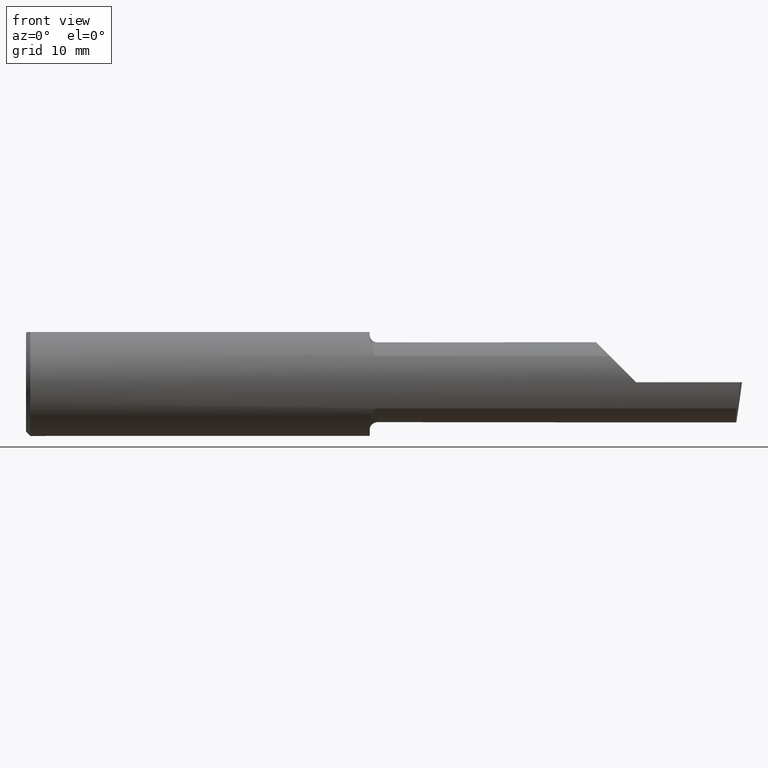
[diagram: clean part render]
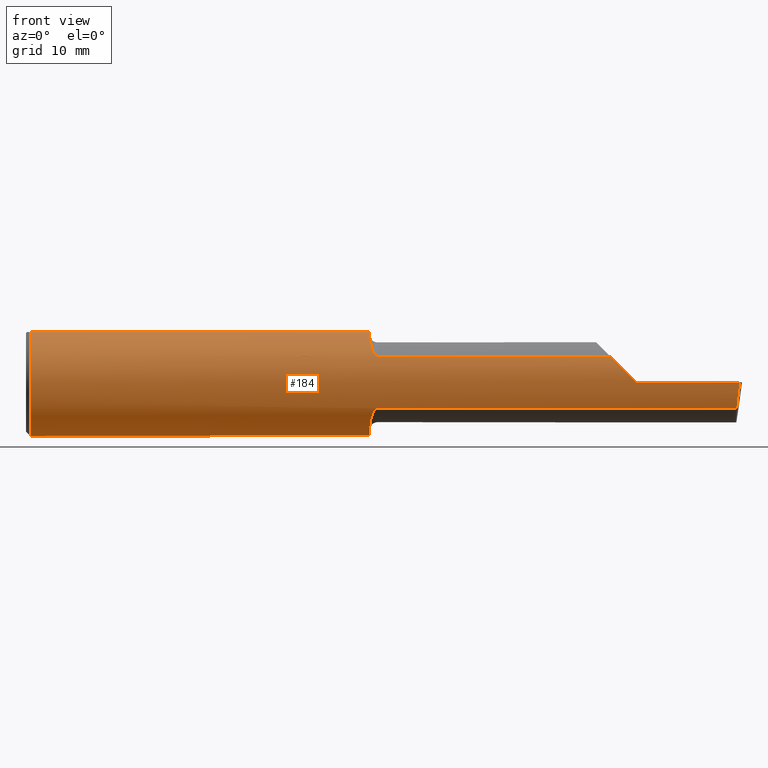
[diagram: same view with one face highlighted and labeled with its STEP entity id]
A machine part, front view. The second image highlights one B-rep face of the part: STEP entity #184.
In plain terms, the highlighted cylindrical surface (partial cylindrical patch) has radius 4.7587 mm, axis along (-1, -0, -0).
Its self-contained STEP definition (entity closure, byte-faithful):
#3 = B_SPLINE_CURVE_WITH_KNOTS ( 'NONE', 3,
 ( #595, #487, #276, #542, #645, #496, #432, #477, #648, #5, #58, #656, #168, #438 ),
 .UNSPECIFIED., .F., .F.,
 ( 4, 2, 2, 2, 2, 2, 4 ),
 ( 0.0002471551878304231319, 0.0008987327522055655899, 0.001550310316580708102, 0.002201887880955850831, 0.002527676663143422521, 0.002690571054237206414, 0.002853465445330989874 ),
 .UNSPECIFIED. ) ;
#5 = CARTESIAN_POINT ( 'NONE',  ( 1.216855994529494112, -0.1603175578889970976, 0.09696363432848424668 ) ) ;
#8 = ORIENTED_EDGE ( 'NONE', *, *, #452, .T. ) ;
#10 = ORIENTED_EDGE ( 'NONE', *, *, #290, .T. ) ;
#12 = LINE ( 'NONE', #109, #449 ) ;
#14 = ORIENTED_EDGE ( 'NONE', *, *, #399, .T. ) ;
#17 = EDGE_CURVE ( 'NONE', #471, #261, #286, .T. ) ;
#19 = VERTEX_POINT ( 'NONE', #445 ) ;
#23 = DIRECTION ( 'NONE',  ( 0.000000000000000000, 0.000000000000000000, 1.000000000000000000 ) ) ;
#24 = AXIS2_PLACEMENT_3D ( 'NONE', #617, #458, #179 ) ;
#27 = DIRECTION ( 'NONE',  ( -1.000000000000000000, -0.000000000000000000, -0.000000000000000000 ) ) ;
#33 = VECTOR ( 'NONE', #63, 39.37007874015748143 ) ;
#39 = LINE ( 'NONE', #264, #446 ) ;
#42 = CARTESIAN_POINT ( 'NONE',  ( 2.097861799102314961, -0.1873500000000000165, 0.03213820089768509858 ) ) ;
#45 = DIRECTION ( 'NONE',  ( 0.000000000000000000, 0.000000000000000000, 1.000000000000000000 ) ) ;
#53 = DIRECTION ( 'NONE',  ( 0.000000000000000000, 0.000000000000000000, 1.000000000000000000 ) ) ;
#56 = EDGE_CURVE ( 'NONE', #261, #339, #575, .T. ) ;
#58 = CARTESIAN_POINT ( 'NONE',  ( 1.218001859868117043, -0.1612625562479372554, 0.09537826053888157074 ) ) ;
#59 = CARTESIAN_POINT ( 'NONE',  ( 1.217975941902153636, -0.1612443294219082224, -0.09540922431498180534 ) ) ;
#61 =( BOUNDED_CURVE ( )  B_SPLINE_CURVE ( 3, ( #334, #163, #377, #604 ),
 .UNSPECIFIED., .F., .F. ) 
 B_SPLINE_CURVE_WITH_KNOTS ( ( 4, 4 ),
 ( 0.8516985021657648147, 1.360746882515198930 ),
 .UNSPECIFIED. ) 
 CURVE ( )  GEOMETRIC_REPRESENTATION_ITEM ( )  RATIONAL_B_SPLINE_CURVE ( ( 1.000000000000000000, 0.9785221379938656705, 0.9785221379938656705, 1.000000000000000000 ) ) 
 REPRESENTATION_ITEM ( '' )  );
#63 = DIRECTION ( 'NONE',  ( -1.000000000000000000, -6.829619984160658046E-18, -0.000000000000000000 ) ) ;
#69 = VECTOR ( 'NONE', #153, 39.37007874015748143 ) ;
#79 = FACE_OUTER_BOUND ( 'NONE', #102, .T. ) ;
#93 = CARTESIAN_POINT ( 'NONE',  ( 1.225000000000000089, -0.1635956445993032859, -0.09130436773856132060 ) ) ;
#102 = EDGE_LOOP ( 'NONE', ( #123, #14, #378, #10, #384, #212, #204, #8, #680, #367, #135, #546, #318 ) ) ;
#109 = CARTESIAN_POINT ( 'NONE',  ( 0.000000000000000000, -0.06597272163553657975, 0.1753499999999999781 ) ) ;
#110 = CARTESIAN_POINT ( 'NONE',  ( 1.220881499230870304, -0.1628722075910993550, -0.09260290410947824569 ) ) ;
#114 = CARTESIAN_POINT ( 'NONE',  ( 1.216814909379088760, -0.1602818635245160106, -0.09702252612905261364 ) ) ;
#116 = CARTESIAN_POINT ( 'NONE',  ( 0.01499999999999999424, 0.000000000000000000, 0.000000000000000000 ) ) ;
#117 = CARTESIAN_POINT ( 'NONE',  ( 1.203041727949557549, -0.1311116946065053745, -0.1340922927843368473 ) ) ;
#122 = CIRCLE ( 'NONE', #24, 0.1873499999999999888 ) ;
#123 = ORIENTED_EDGE ( 'NONE', *, *, #17, .F. ) ;
#127 = CARTESIAN_POINT ( 'NONE',  ( 0.01499999999999997863, -0.06597272163553657975, 0.1753499999999999781 ) ) ;
#132 = DIRECTION ( 'NONE',  ( 1.000000000000000000, 6.829619984160658046E-18, 0.000000000000000000 ) ) ;
#134 = AXIS2_PLACEMENT_3D ( 'NONE', #561, #132, #520 ) ;
#135 = ORIENTED_EDGE ( 'NONE', *, *, #362, .T. ) ;
#141 = CARTESIAN_POINT ( 'NONE',  ( 2.491672876940991710, -0.1873499999999999888, 6.915950918908297591E-17 ) ) ;
#147 = CARTESIAN_POINT ( 'NONE',  ( 1.199999999999999956, -0.09715400696864127938, -0.1601908905959923690 ) ) ;
#153 = DIRECTION ( 'NONE',  ( 1.000000000000000000, 0.000000000000000000, 0.000000000000000000 ) ) ;
#161 = EDGE_CURVE ( 'NONE', #357, #19, #495, .T. ) ;
#163 = CARTESIAN_POINT ( 'NONE',  ( 2.484117089522338340, -0.1792580844883771840, -0.06324101202936123489 ) ) ;
#168 = CARTESIAN_POINT ( 'NONE',  ( 1.222800914500664859, -0.1635956445997550635, 0.09130436773775207904 ) ) ;
#169 = CARTESIAN_POINT ( 'NONE',  ( 1.225000000000000089, -0.1635956445993032859, -0.09130436773856132060 ) ) ;
#179 = DIRECTION ( 'NONE',  ( 0.000000000000000000, 1.000000000000000000, 0.000000000000000000 ) ) ;
#182 = CIRCLE ( 'NONE', #305, 0.1873499999999999888 ) ;
#184 = ADVANCED_FACE ( 'NONE', ( #79 ), #513, .T. ) ;
#186 = CARTESIAN_POINT ( 'NONE',  ( 1.199999999999999956, -0.09715400696864127938, -0.1601908905959923690 ) ) ;
#198 = CARTESIAN_POINT ( 'NONE',  ( 1.199999999999999956, -0.1045082199249681987, -0.1557306416133593385 ) ) ;
#204 = ORIENTED_EDGE ( 'NONE', *, *, #161, .F. ) ;
#208 = CARTESIAN_POINT ( 'NONE',  ( 2.129999999999999893, -0.1873499999999999888, 1.065442715258197396E-16 ) ) ;
#212 = ORIENTED_EDGE ( 'NONE', *, *, #442, .F. ) ;
#223 = CARTESIAN_POINT ( 'NONE',  ( 1.199999999999999956, 0.06597272163553663527, 0.1753499999999999781 ) ) ;
#227 = VERTEX_POINT ( 'NONE', #464 ) ;
#241 = CARTESIAN_POINT ( 'NONE',  ( 1.200384441902395682, -0.1115101367984840525, -0.1507946173152222846 ) ) ;
#248 = CARTESIAN_POINT ( 'NONE',  ( 2.129999999999999893, -0.1873499999999999888, 1.065442715258197396E-16 ) ) ;
#251 = CIRCLE ( 'NONE', #393, 0.1873499999999999888 ) ;
#258 = DIRECTION ( 'NONE',  ( -1.000000000000000000, -0.000000000000000000, -0.000000000000000000 ) ) ;
#261 = VERTEX_POINT ( 'NONE', #93 ) ;
#264 = CARTESIAN_POINT ( 'NONE',  ( 3.377502344341257155E-32, -0.1873499999999999610, 3.267291166268304703E-16 ) ) ;
#271 = CARTESIAN_POINT ( 'NONE',  ( 0.01499999999999999424, 0.000000000000000000, -0.1873499999999999888 ) ) ;
#276 = CARTESIAN_POINT ( 'NONE',  ( 1.200383728133729955, -0.1114837668894152756, 0.1508119329971095712 ) ) ;
#286 = LINE ( 'NONE', #289, #33 ) ;
#289 = CARTESIAN_POINT ( 'NONE',  ( 1.692500000000000115, -0.1635956445993031472, -0.09130436773856158428 ) ) ;
#290 = EDGE_CURVE ( 'NONE', #511, #227, #356, .T. ) ;
#293 = EDGE_CURVE ( 'NONE', #651, #511, #39, .T. ) ;
#305 = AXIS2_PLACEMENT_3D ( 'NONE', #116, #441, #53 ) ;
#318 = ORIENTED_EDGE ( 'NONE', *, *, #56, .F. ) ;
#322 = EDGE_CURVE ( 'NONE', #609, #227, #632, .T. ) ;
#334 = CARTESIAN_POINT ( 'NONE',  ( 2.481080296960509024, -0.1635956445993031472, -0.09130436773856158428 ) ) ;
#335 = CARTESIAN_POINT ( 'NONE',  ( 1.212184598714912687, -0.1550322129197699017, -0.1052705638704079516 ) ) ;
#339 = VERTEX_POINT ( 'NONE', #147 ) ;
#348 = EDGE_CURVE ( 'NONE', #430, #479, #251, .T. ) ;
#350 = CARTESIAN_POINT ( 'NONE',  ( 1.225000000000000089, -0.1635956445993030917, 0.09130436773856158428 ) ) ;
#356 =( BOUNDED_CURVE ( )  B_SPLINE_CURVE ( 3, ( #208, #42, #589, #523 ),
 .UNSPECIFIED., .F., .F. ) 
 B_SPLINE_CURVE_WITH_KNOTS ( ( 4, 4 ),
 ( 4.712388980384689674, 5.221437360734125122 ),
 .UNSPECIFIED. ) 
 CURVE ( )  GEOMETRIC_REPRESENTATION_ITEM ( )  RATIONAL_B_SPLINE_CURVE ( ( 1.000000000000000000, 0.9785221379938656705, 0.9785221379938656705, 1.000000000000000000 ) ) 
 REPRESENTATION_ITEM ( '' )  );
#357 = VERTEX_POINT ( 'NONE', #473 ) ;
#362 = EDGE_CURVE ( 'NONE', #430, #436, #534, .T. ) ;
#367 = ORIENTED_EDGE ( 'NONE', *, *, #348, .F. ) ;
#377 = CARTESIAN_POINT ( 'NONE',  ( 2.487725449370724817, -0.1873500000000000443, -0.03213820089768502919 ) ) ;
#378 = ORIENTED_EDGE ( 'NONE', *, *, #293, .T. ) ;
#384 = ORIENTED_EDGE ( 'NONE', *, *, #322, .F. ) ;
#387 = EDGE_CURVE ( 'NONE', #479, #585, #182, .T. ) ;
#388 = CARTESIAN_POINT ( 'NONE',  ( 1.208068207442170472, -0.1478915270140212235, -0.1153063024254922103 ) ) ;
#389 = DIRECTION ( 'NONE',  ( -1.000000000000000000, -0.000000000000000000, -0.000000000000000000 ) ) ;
#393 = AXIS2_PLACEMENT_3D ( 'NONE', #683, #420, #45 ) ;
#399 = EDGE_CURVE ( 'NONE', #471, #651, #61, .T. ) ;
#420 = DIRECTION ( 'NONE',  ( -1.000000000000000000, -0.000000000000000000, -0.000000000000000000 ) ) ;
#423 = CARTESIAN_POINT ( 'NONE',  ( 0.000000000000000000, 0.06597272163553663527, 0.1753499999999999781 ) ) ;
#429 = CARTESIAN_POINT ( 'NONE',  ( 0.01499999999999999424, 0.06597272163553663527, 0.1753499999999999781 ) ) ;
#430 = VERTEX_POINT ( 'NONE', #429 ) ;
#432 = CARTESIAN_POINT ( 'NONE',  ( 1.208072954143140088, -0.1479074971576200548, 0.1152872342625229363 ) ) ;
#436 = VERTEX_POINT ( 'NONE', #223 ) ;
#438 = CARTESIAN_POINT ( 'NONE',  ( 1.225000000000000089, -0.1635956445993030917, 0.09130436773856158428 ) ) ;
#441 = DIRECTION ( 'NONE',  ( -1.000000000000000000, -0.000000000000000000, -0.000000000000000000 ) ) ;
#442 = EDGE_CURVE ( 'NONE', #19, #609, #3, .T. ) ;
#445 = CARTESIAN_POINT ( 'NONE',  ( 1.199999999999999956, -0.09715400696864127938, 0.1601908905959923690 ) ) ;
#446 = VECTOR ( 'NONE', #258, 39.37007874015748143 ) ;
#449 = VECTOR ( 'NONE', #389, 39.37007874015748143 ) ;
#452 = EDGE_CURVE ( 'NONE', #357, #585, #12, .T. ) ;
#458 = DIRECTION ( 'NONE',  ( 1.000000000000000000, 6.829619984160658046E-18, 0.000000000000000000 ) ) ;
#464 = CARTESIAN_POINT ( 'NONE',  ( 2.038695632261437130, -0.1635956445993030084, 0.09130436773856177857 ) ) ;
#471 = VERTEX_POINT ( 'NONE', #490 ) ;
#473 = CARTESIAN_POINT ( 'NONE',  ( 1.199999999999999956, -0.06597272163553659363, 0.1753499999999999781 ) ) ;
#477 = CARTESIAN_POINT ( 'NONE',  ( 1.212204638458736827, -0.1550630761760525278, 0.1052254855377559584 ) ) ;
#479 = VERTEX_POINT ( 'NONE', #271 ) ;
#487 = CARTESIAN_POINT ( 'NONE',  ( 1.199999999999999734, -0.1045012500212954693, 0.1557348687830034384 ) ) ;
#490 = CARTESIAN_POINT ( 'NONE',  ( 2.481080296960509024, -0.1635956445993031472, -0.09130436773856158428 ) ) ;
#491 = CARTESIAN_POINT ( 'NONE',  ( 1.206145841430604104, -0.1426194794824340584, -0.1217813759115465855 ) ) ;
#495 = CIRCLE ( 'NONE', #134, 0.1873499999999999888 ) ;
#496 = CARTESIAN_POINT ( 'NONE',  ( 1.206142321956750418, -0.1426151417460931881, 0.1217894822571231050 ) ) ;
#497 = CARTESIAN_POINT ( 'NONE',  ( 1.213743174082349885, -0.1572750258711011206, -0.1018777902325210677 ) ) ;
#505 = EDGE_CURVE ( 'NONE', #339, #436, #122, .T. ) ;
#511 = VERTEX_POINT ( 'NONE', #248 ) ;
#513 = CYLINDRICAL_SURFACE ( 'NONE', #530, 0.1873499999999999888 ) ;
#520 = DIRECTION ( 'NONE',  ( 0.000000000000000000, 1.000000000000000000, 0.000000000000000000 ) ) ;
#523 = CARTESIAN_POINT ( 'NONE',  ( 2.038695632261437130, -0.1635956445993030084, 0.09130436773856177857 ) ) ;
#525 = DIRECTION ( 'NONE',  ( 1.000000000000000000, 6.829619984160658046E-18, 0.000000000000000000 ) ) ;
#530 = AXIS2_PLACEMENT_3D ( 'NONE', #668, #27, #23 ) ;
#534 = LINE ( 'NONE', #423, #69 ) ;
#542 = CARTESIAN_POINT ( 'NONE',  ( 1.201891754936544876, -0.1247344934163568259, 0.1400506178720500594 ) ) ;
#546 = ORIENTED_EDGE ( 'NONE', *, *, #505, .F. ) ;
#561 = CARTESIAN_POINT ( 'NONE',  ( 1.199999999999999956, 0.000000000000000000, 0.000000000000000000 ) ) ;
#569 = CARTESIAN_POINT ( 'NONE',  ( 1.201903396790307665, -0.1248165254919063050, -0.1399798634953945131 ) ) ;
#575 = B_SPLINE_CURVE_WITH_KNOTS ( 'NONE', 3,
 ( #169, #597, #110, #59, #114, #497, #335, #388, #491, #117, #569, #241, #198, #186 ),
 .UNSPECIFIED., .F., .F.,
 ( 4, 2, 2, 2, 2, 2, 4 ),
 ( 1.968340875534775581E-07, 0.0001667114270246291413, 0.0003332260199617048126, 0.0006662552058358523063, 0.001332313577584147294, 0.001998371949332442606, 0.002664430321080737702 ),
 .UNSPECIFIED. ) ;
#585 = VERTEX_POINT ( 'NONE', #127 ) ;
#589 = CARTESIAN_POINT ( 'NONE',  ( 2.066758987970638284, -0.1792580844883770730, 0.06324101202936138755 ) ) ;
#595 = CARTESIAN_POINT ( 'NONE',  ( 1.199999999999999956, -0.09715400696864127938, 0.1601908905959923690 ) ) ;
#597 = CARTESIAN_POINT ( 'NONE',  ( 1.222779935319434408, -0.1635956445993033415, -0.09130436773856122346 ) ) ;
#604 = CARTESIAN_POINT ( 'NONE',  ( 2.491672876940991710, -0.1873499999999999888, 6.915950918908297591E-17 ) ) ;
#609 = VERTEX_POINT ( 'NONE', #350 ) ;
#617 = CARTESIAN_POINT ( 'NONE',  ( 1.199999999999999956, 0.000000000000000000, 0.000000000000000000 ) ) ;
#632 = LINE ( 'NONE', #639, #638 ) ;
#638 = VECTOR ( 'NONE', #525, 39.37007874015748143 ) ;
#639 = CARTESIAN_POINT ( 'NONE',  ( 1.692500000000000115, -0.1635956445993031472, 0.09130436773856158428 ) ) ;
#645 = CARTESIAN_POINT ( 'NONE',  ( 1.203025912205683667, -0.1310442973014115942, 0.1341609063345042263 ) ) ;
#648 = CARTESIAN_POINT ( 'NONE',  ( 1.213764108097883154, -0.1573043405450773591, 0.1018329020719633271 ) ) ;
#651 = VERTEX_POINT ( 'NONE', #141 ) ;
#656 = CARTESIAN_POINT ( 'NONE',  ( 1.220903862568968989, -0.1628809688430622460, 0.09258733509388460126 ) ) ;
#668 = CARTESIAN_POINT ( 'NONE',  ( 0.000000000000000000, 0.000000000000000000, 0.000000000000000000 ) ) ;
#680 = ORIENTED_EDGE ( 'NONE', *, *, #387, .F. ) ;
#683 = CARTESIAN_POINT ( 'NONE',  ( 0.01499999999999999424, 0.000000000000000000, 0.000000000000000000 ) ) ;